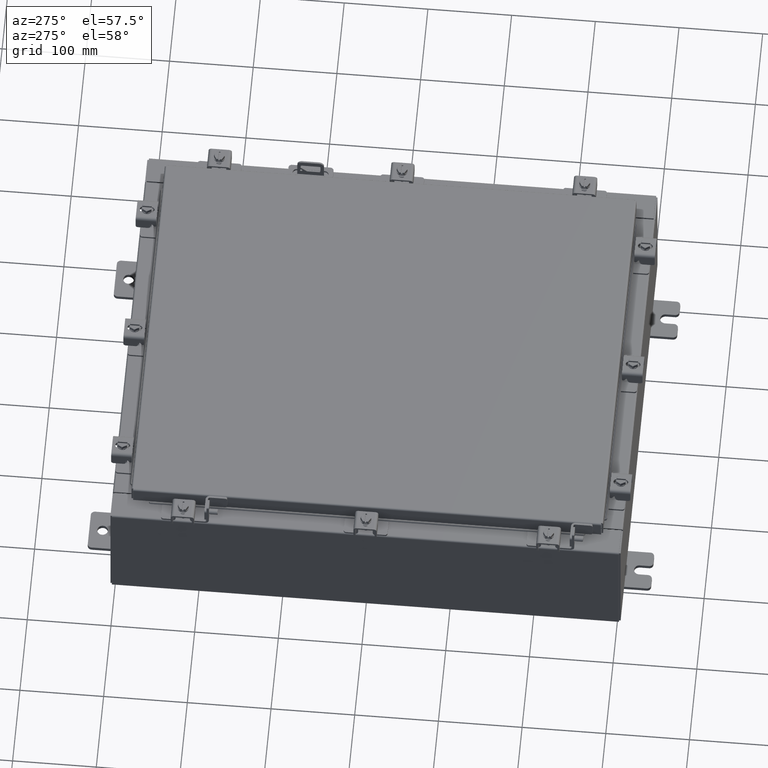
[diagram: clean part render]
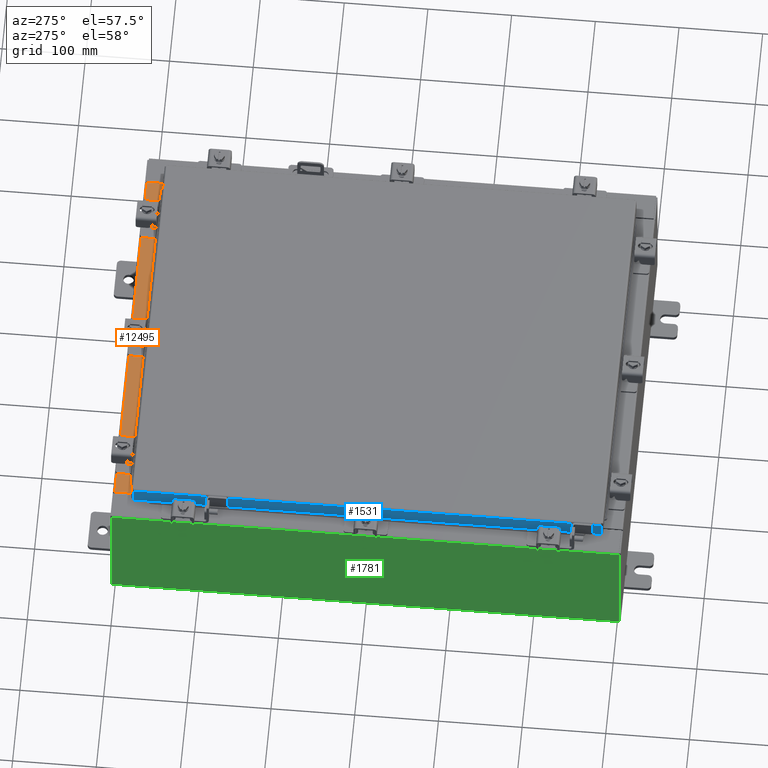
[diagram: same view with three faces highlighted in distinct colors, each labeled with its STEP entity id]
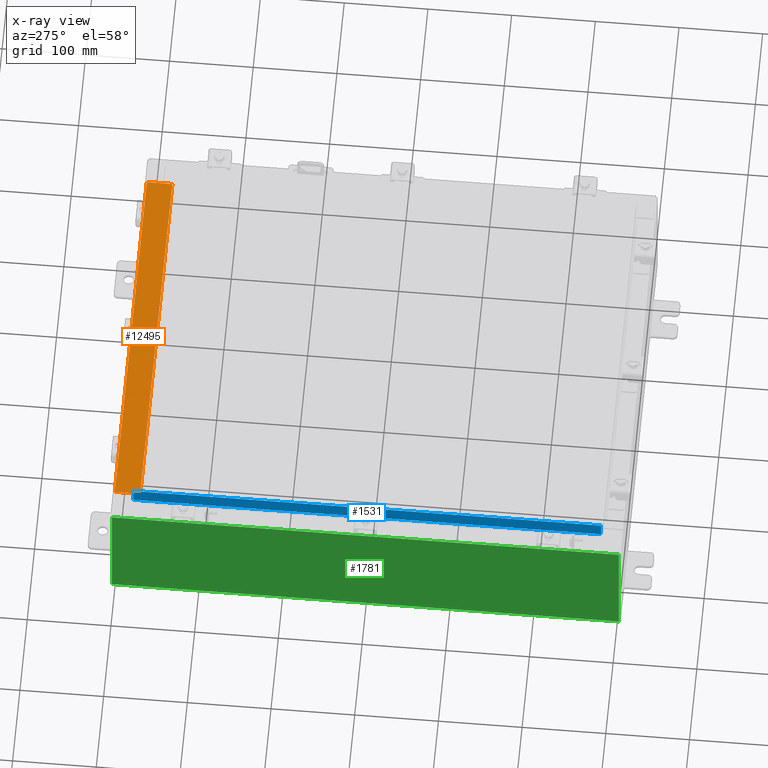
[diagram: x-ray of the same camera — body ghosted, the three highlighted faces saturated]
A machine part, auxiliary view with three faces highlighted in distinct colors.
The next image is the same camera in x-ray (body ghosted, the three faces saturated) — at least one of them is partly hidden behind the body in this view.
Their STEP definitions:

[orange] entity #12495 — the highlighted planar face has unit normal (0, 0, 1).
#781 = ORIENTED_EDGE ( 'NONE', *, *, #6595, .T. ) ;
#1865 = VERTEX_POINT ( 'NONE', #17424 ) ;
#2387 = LINE ( 'NONE', #11094, #6558 ) ;
#2554 = VECTOR ( 'NONE', #11222, 39.37007874015748100 ) ;
#2738 = FACE_OUTER_BOUND ( 'NONE', #17614, .T. ) ;
#3599 = PLANE ( 'NONE',  #14794 ) ;
#3815 = DIRECTION ( 'NONE',  ( -1.000000000000000000, 0.0000000000000000000, 0.0000000000000000000 ) ) ;
#3832 = VECTOR ( 'NONE', #3815, 39.37007874015748100 ) ;
#4079 = EDGE_CURVE ( 'NONE', #8463, #16563, #2387, .T. ) ;
#4122 = VERTEX_POINT ( 'NONE', #10404 ) ;
#4608 = ORIENTED_EDGE ( 'NONE', *, *, #15705, .F. ) ;
#5375 = DIRECTION ( 'NONE',  ( 0.0000000000000000000, -1.000000000000000000, 3.566381192773190000E-015 ) ) ;
#6558 = VECTOR ( 'NONE', #10872, 39.37007874015748100 ) ;
#6595 = EDGE_CURVE ( 'NONE', #8463, #1865, #11841, .T. ) ;
#8463 = VERTEX_POINT ( 'NONE', #13496 ) ;
#9020 = CARTESIAN_POINT ( 'NONE',  ( 8.637200000000000000, -1.287299999999999900, 3.000000000000005300 ) ) ;
#9037 = ORIENTED_EDGE ( 'NONE', *, *, #21988, .F. ) ;
#10404 = CARTESIAN_POINT ( 'NONE',  ( -8.637200000000000000, -1.287299999999999200, 3.000000000000005300 ) ) ;
#10872 = DIRECTION ( 'NONE',  ( -0.0000000000000000000, -1.000000000000000000, 3.566381192773190000E-015 ) ) ;
#11094 = CARTESIAN_POINT ( 'NONE',  ( 8.637200000000000000, -1.300299999999999800, 3.000000000000005300 ) ) ;
#11105 = VECTOR ( 'NONE', #17441, 39.37007874015748100 ) ;
#11222 = DIRECTION ( 'NONE',  ( -1.000000000000000000, 3.162886113166609200E-017, -1.128005754888089100E-031 ) ) ;
#11841 = LINE ( 'NONE', #18191, #2554 ) ;
#12381 = ORIENTED_EDGE ( 'NONE', *, *, #4079, .F. ) ;
#12495 = ADVANCED_FACE ( 'NONE', ( #2738 ), #3599, .T. ) ;
#13496 = CARTESIAN_POINT ( 'NONE',  ( 8.637200000000000000, -0.08769999999999965300, 3.000000000000000900 ) ) ;
#13951 = CARTESIAN_POINT ( 'NONE',  ( 0.0000000000000000000, 1.069354855923099900E-014, 3.000000000000000900 ) ) ;
#14794 = AXIS2_PLACEMENT_3D ( 'NONE', #13951, #15700, #5375 ) ;
#15636 = CARTESIAN_POINT ( 'NONE',  ( -8.637200000000000000, -0.07469999999999973900, 3.000000000000000900 ) ) ;
#15700 = DIRECTION ( 'NONE',  ( 0.0000000000000000000, 3.566381192773190000E-015, 1.000000000000000000 ) ) ;
#15705 = EDGE_CURVE ( 'NONE', #4122, #1865, #20883, .T. ) ;
#16563 = VERTEX_POINT ( 'NONE', #21576 ) ;
#17424 = CARTESIAN_POINT ( 'NONE',  ( -8.637200000000000000, -0.08770000000000000000, 3.000000000000000900 ) ) ;
#17441 = DIRECTION ( 'NONE',  ( -0.0000000000000000000, 1.000000000000000000, -3.566381192773190000E-015 ) ) ;
#17614 = EDGE_LOOP ( 'NONE', ( #4608, #9037, #12381, #781 ) ) ;
#18191 = CARTESIAN_POINT ( 'NONE',  ( -2.773851121247453900E-018, -0.08770000000000000000, 3.000000000000001300 ) ) ;
#19330 = LINE ( 'NONE', #9020, #3832 ) ;
#20883 = LINE ( 'NONE', #15636, #11105 ) ;
#21576 = CARTESIAN_POINT ( 'NONE',  ( 8.637200000000000000, -1.287299999999999900, 3.000000000000005300 ) ) ;
#21988 = EDGE_CURVE ( 'NONE', #16563, #4122, #19330, .T. ) ;

[blue] entity #1531 — the highlighted planar face has unit normal (1, 0, -0).
#679 = ORIENTED_EDGE ( 'NONE', *, *, #6156, .F. ) ;
#1182 = CARTESIAN_POINT ( 'NONE',  ( -9.077999999999999400, 11.00515786437626900, -0.08770000000000007000 ) ) ;
#1384 = CARTESIAN_POINT ( 'NONE',  ( -9.078000000000001200, -11.09400000000000100, -0.8499999999999996400 ) ) ;
#1437 = VECTOR ( 'NONE', #14480, 39.37007874015748100 ) ;
#1531 = ADVANCED_FACE ( 'NONE', ( #11741 ), #10584, .F. ) ;
#2022 = CARTESIAN_POINT ( 'NONE',  ( -9.077999999999999400, -2.993152817254264100E-030, 2.585061485449906600E-014 ) ) ;
#2614 = LINE ( 'NONE', #22322, #7328 ) ;
#2638 = ORIENTED_EDGE ( 'NONE', *, *, #17575, .F. ) ;
#3150 = DIRECTION ( 'NONE',  ( 4.379057701015054300E-047, 1.000000000000000000, 1.169666303398706600E-016 ) ) ;
#3175 = ORIENTED_EDGE ( 'NONE', *, *, #15413, .F. ) ;
#3217 = VECTOR ( 'NONE', #20104, 39.37007874015748100 ) ;
#4409 = VERTEX_POINT ( 'NONE', #7961 ) ;
#4748 = DIRECTION ( 'NONE',  ( 4.379057701015054300E-047, 1.000000000000000000, 1.169666303398706600E-016 ) ) ;
#5450 = VERTEX_POINT ( 'NONE', #13402 ) ;
#5650 = LINE ( 'NONE', #1384, #14258 ) ;
#5835 = CARTESIAN_POINT ( 'NONE',  ( -9.077999999999999400, -11.00515786437627100, -0.07469999999999978000 ) ) ;
#6156 = EDGE_CURVE ( 'NONE', #18478, #5450, #5650, .T. ) ;
#6240 = CARTESIAN_POINT ( 'NONE',  ( -9.077999999999994100, -10.25515786437626900, -0.8500000000000005300 ) ) ;
#6817 = ORIENTED_EDGE ( 'NONE', *, *, #16837, .T. ) ;
#7170 = DIRECTION ( 'NONE',  ( 3.297150052053607100E-031, -1.000000000000000000, -8.987264781119274900E-046 ) ) ;
#7328 = VECTOR ( 'NONE', #13628, 39.37007874015748100 ) ;
#7961 = CARTESIAN_POINT ( 'NONE',  ( -9.078000000000001200, 11.00515786437627100, -0.8499999999999970900 ) ) ;
#8033 = ORIENTED_EDGE ( 'NONE', *, *, #20344, .F. ) ;
#8572 = VECTOR ( 'NONE', #7170, 39.37007874015748100 ) ;
#8900 = CARTESIAN_POINT ( 'NONE',  ( -9.077999999999999400, -11.09400000000000100, -0.08770000000000007000 ) ) ;
#8987 = LINE ( 'NONE', #6240, #3217 ) ;
#10258 = CARTESIAN_POINT ( 'NONE',  ( -9.077999999999994100, 10.25515786437626900, -0.8500000000000005300 ) ) ;
#10308 = VERTEX_POINT ( 'NONE', #1182 ) ;
#10399 = EDGE_LOOP ( 'NONE', ( #8033, #6817, #2638, #3175, #679, #21530 ) ) ;
#10584 = PLANE ( 'NONE',  #16320 ) ;
#11741 = FACE_OUTER_BOUND ( 'NONE', #10399, .T. ) ;
#12367 = DIRECTION ( 'NONE',  ( -2.818880942772360100E-015, 0.0000000000000000000, -1.000000000000000000 ) ) ;
#12447 = DIRECTION ( 'NONE',  ( 1.000000000000000000, 3.297150052053607100E-031, -2.818880942772360100E-015 ) ) ;
#13402 = CARTESIAN_POINT ( 'NONE',  ( -9.077999999999994100, -10.25515786437626900, -0.8500000000000005300 ) ) ;
#13628 = DIRECTION ( 'NONE',  ( -2.818880942772360100E-015, 6.982962677686267500E-015, -1.000000000000000000 ) ) ;
#14258 = VECTOR ( 'NONE', #3150, 39.37007874015748100 ) ;
#14267 = LINE ( 'NONE', #16839, #22463 ) ;
#14480 = DIRECTION ( 'NONE',  ( -2.818880942772360100E-015, 6.982962677686267500E-015, -1.000000000000000000 ) ) ;
#15328 = LINE ( 'NONE', #5835, #1437 ) ;
#15413 = EDGE_CURVE ( 'NONE', #5450, #20650, #8987, .T. ) ;
#16320 = AXIS2_PLACEMENT_3D ( 'NONE', #2022, #12447, #12367 ) ;
#16561 = CARTESIAN_POINT ( 'NONE',  ( -9.077999999999999400, -11.00515786437626900, -0.08770000000000007000 ) ) ;
#16837 = EDGE_CURVE ( 'NONE', #10308, #4409, #2614, .T. ) ;
#16839 = CARTESIAN_POINT ( 'NONE',  ( -9.078000000000001200, -11.09400000000000100, -0.8499999999999996400 ) ) ;
#17575 = EDGE_CURVE ( 'NONE', #20650, #4409, #14267, .T. ) ;
#18478 = VERTEX_POINT ( 'NONE', #20940 ) ;
#18775 = VERTEX_POINT ( 'NONE', #16561 ) ;
#19196 = EDGE_CURVE ( 'NONE', #18775, #18478, #15328, .T. ) ;
#20104 = DIRECTION ( 'NONE',  ( -0.0000000000000000000, 1.000000000000000000, -0.0000000000000000000 ) ) ;
#20344 = EDGE_CURVE ( 'NONE', #10308, #18775, #22364, .T. ) ;
#20650 = VERTEX_POINT ( 'NONE', #10258 ) ;
#20940 = CARTESIAN_POINT ( 'NONE',  ( -9.078000000000001200, -11.00515786437626700, -0.8499999999999996400 ) ) ;
#21530 = ORIENTED_EDGE ( 'NONE', *, *, #19196, .F. ) ;
#22322 = CARTESIAN_POINT ( 'NONE',  ( -9.077999999999999400, 11.00515786437626700, 1.026992214834840400E-013 ) ) ;
#22364 = LINE ( 'NONE', #8900, #8572 ) ;
#22463 = VECTOR ( 'NONE', #4748, 39.37007874015748100 ) ;

[green] entity #1781 — the highlighted planar face has unit normal (1, 0, 0).
#215 = EDGE_CURVE ( 'NONE', #18786, #7922, #1731, .T. ) ;
#608 = CARTESIAN_POINT ( 'NONE',  ( -10.00000000000000000, 11.92530000000000000, 0.01299999999999985900 ) ) ;
#1333 = ORIENTED_EDGE ( 'NONE', *, *, #2845, .T. ) ;
#1731 = LINE ( 'NONE', #11934, #19724 ) ;
#1781 = ADVANCED_FACE ( 'NONE', ( #11993 ), #8408, .F. ) ;
#1987 = DIRECTION ( 'NONE',  ( -0.0000000000000000000, 1.000000000000000000, -0.0000000000000000000 ) ) ;
#2568 = EDGE_CURVE ( 'NONE', #10914, #7593, #3855, .T. ) ;
#2845 = EDGE_CURVE ( 'NONE', #7593, #7922, #8237, .T. ) ;
#3097 = DIRECTION ( 'NONE',  ( 3.319545939341922800E-015, 0.0000000000000000000, -1.000000000000000000 ) ) ;
#3855 = LINE ( 'NONE', #17204, #7962 ) ;
#4901 = DIRECTION ( 'NONE',  ( 1.000000000000000000, 0.0000000000000000000, 3.319545939341922800E-015 ) ) ;
#5604 = CARTESIAN_POINT ( 'NONE',  ( -10.00000000000000000, -11.92530000000000000, -3.345627304943080600E-014 ) ) ;
#6677 = CARTESIAN_POINT ( 'NONE',  ( -10.00000000000000000, 0.0000000000000000000, -3.345627304943080600E-014 ) ) ;
#7349 = DIRECTION ( 'NONE',  ( -3.319545939341922800E-015, 0.0000000000000000000, 1.000000000000000000 ) ) ;
#7593 = VERTEX_POINT ( 'NONE', #10281 ) ;
#7729 = DIRECTION ( 'NONE',  ( 3.319545939341922800E-015, 0.0000000000000000000, -1.000000000000000000 ) ) ;
#7922 = VERTEX_POINT ( 'NONE', #608 ) ;
#7962 = VECTOR ( 'NONE', #17319, 39.37007874015748100 ) ;
#8237 = LINE ( 'NONE', #8505, #12239 ) ;
#8408 = PLANE ( 'NONE',  #11269 ) ;
#8505 = CARTESIAN_POINT ( 'NONE',  ( -10.00000000000000000, 11.92530000000000000, -3.345627304943080600E-014 ) ) ;
#8721 = EDGE_LOOP ( 'NONE', ( #17457, #1333, #17733, #15957 ) ) ;
#10281 = CARTESIAN_POINT ( 'NONE',  ( -10.00000000000002000, 11.92530000000000000, 5.837599999999999200 ) ) ;
#10914 = VERTEX_POINT ( 'NONE', #20444 ) ;
#11269 = AXIS2_PLACEMENT_3D ( 'NONE', #6677, #4901, #3097 ) ;
#11934 = CARTESIAN_POINT ( 'NONE',  ( -10.00000000000000000, 11.92530000000000000, 0.01299999999999986400 ) ) ;
#11993 = FACE_OUTER_BOUND ( 'NONE', #8721, .T. ) ;
#12239 = VECTOR ( 'NONE', #7729, 39.37007874015748100 ) ;
#12391 = VECTOR ( 'NONE', #7349, 39.37007874015748100 ) ;
#15957 = ORIENTED_EDGE ( 'NONE', *, *, #16409, .T. ) ;
#16409 = EDGE_CURVE ( 'NONE', #18786, #10914, #21652, .T. ) ;
#17204 = CARTESIAN_POINT ( 'NONE',  ( -10.00000000000002300, -11.92530000000000000, 5.837599999999999200 ) ) ;
#17319 = DIRECTION ( 'NONE',  ( 0.0000000000000000000, 1.000000000000000000, 0.0000000000000000000 ) ) ;
#17457 = ORIENTED_EDGE ( 'NONE', *, *, #2568, .T. ) ;
#17733 = ORIENTED_EDGE ( 'NONE', *, *, #215, .F. ) ;
#18347 = CARTESIAN_POINT ( 'NONE',  ( -10.00000000000000000, -11.92529999999999800, 0.01299999999999986400 ) ) ;
#18786 = VERTEX_POINT ( 'NONE', #18347 ) ;
#19724 = VECTOR ( 'NONE', #1987, 39.37007874015748100 ) ;
#20444 = CARTESIAN_POINT ( 'NONE',  ( -10.00000000000002300, -11.92529999999999600, 5.837599999999999200 ) ) ;
#21652 = LINE ( 'NONE', #5604, #12391 ) ;